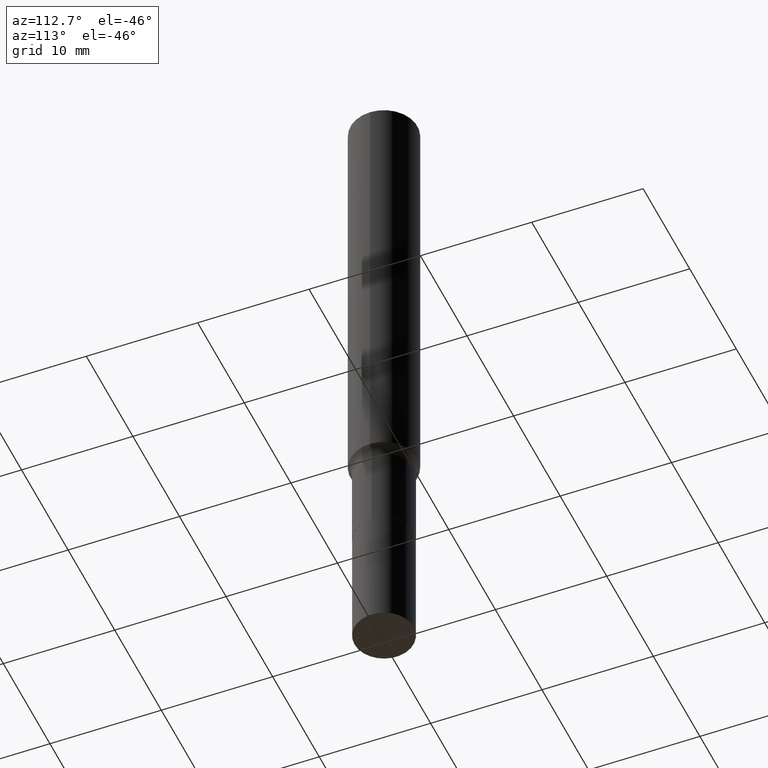
[diagram: clean part render]
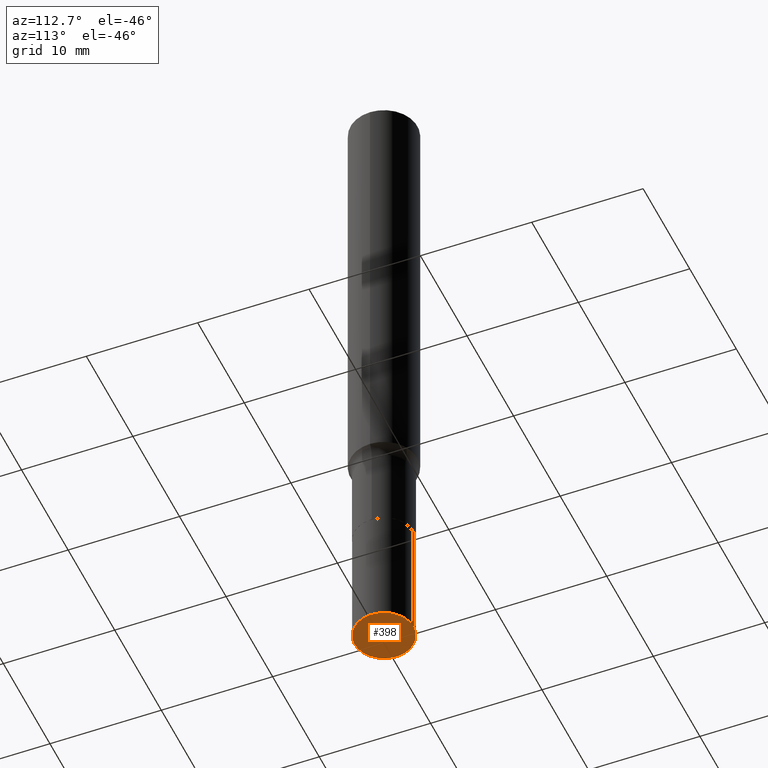
[diagram: same view with one face highlighted and labeled with its STEP entity id]
A machine part, auxiliary view. The second image highlights one B-rep face of the part: STEP entity #398.
In plain terms, the highlighted planar face has unit normal (-0, 0, 1).
Its self-contained STEP definition (entity closure, byte-faithful):
#27 = DIRECTION ( 'NONE',  ( -2.480896975213796784E-29, 3.440746184347948920E-15, 1.000000000000000000 ) ) ;
#54 = CARTESIAN_POINT ( 'NONE',  ( 5.792487377357313463E-29, -8.224949339710422363E-15, -2.362200000000000522 ) ) ;
#77 = DIRECTION ( 'NONE',  ( -2.480896975213797344E-29, 3.440746184347948526E-15, 1.000000000000000000 ) ) ;
#103 = AXIS2_PLACEMENT_3D ( 'NONE', #289, #77, #211 ) ;
#107 = EDGE_CURVE ( 'NONE', #259, #226, #385, .T. ) ;
#122 = PLANE ( 'NONE',  #140 ) ;
#140 = AXIS2_PLACEMENT_3D ( 'NONE', #418, #27, #197 ) ;
#197 = DIRECTION ( 'NONE',  ( -6.982962677686265922E-15, -1.000000000000000000, 3.440746184347948920E-15 ) ) ;
#198 = ORIENTED_EDGE ( 'NONE', *, *, #107, .F. ) ;
#211 = DIRECTION ( 'NONE',  ( -6.982962677686265922E-15, -1.000000000000000000, 2.617966452960483025E-15 ) ) ;
#226 = VERTEX_POINT ( 'NONE', #335 ) ;
#244 = CIRCLE ( 'NONE', #308, 0.1043499999999999706 ) ;
#259 = VERTEX_POINT ( 'NONE', #372 ) ;
#266 = EDGE_LOOP ( 'NONE', ( #198, #431 ) ) ;
#289 = CARTESIAN_POINT ( 'NONE',  ( 5.792487377357313463E-29, -8.224949339710422363E-15, -2.362200000000000522 ) ) ;
#308 = AXIS2_PLACEMENT_3D ( 'NONE', #54, #453, #376 ) ;
#316 = EDGE_CURVE ( 'NONE', #226, #259, #244, .T. ) ;
#332 = FACE_OUTER_BOUND ( 'NONE', #266, .T. ) ;
#335 = CARTESIAN_POINT ( 'NONE',  ( 7.414513447657164982E-16, 0.1043499999999917410, -2.362200000000000966 ) ) ;
#372 = CARTESIAN_POINT ( 'NONE',  ( -7.286721554165037393E-16, -0.1043500000000082001, -2.362200000000000077 ) ) ;
#376 = DIRECTION ( 'NONE',  ( -6.982962677686265922E-15, -1.000000000000000000, 2.617966452960483025E-15 ) ) ;
#385 = CIRCLE ( 'NONE', #103, 0.1043499999999999706 ) ;
#398 = ADVANCED_FACE ( 'NONE', ( #332 ), #122, .F. ) ;
#418 = CARTESIAN_POINT ( 'NONE',  ( 1.458310318663360235E-29, -1.443173757379853500E-14, -2.362200000000000077 ) ) ;
#431 = ORIENTED_EDGE ( 'NONE', *, *, #316, .F. ) ;
#453 = DIRECTION ( 'NONE',  ( -2.480896975213797344E-29, 3.440746184347948526E-15, 1.000000000000000000 ) ) ;